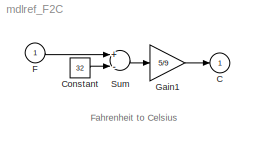
MODEL mdlref_F2C
KIND model
BLOCK [Outport] C
  BusOutputAsStruct = off
  IconDisplay = Port number
  InitialOutput = 0
BLOCK [Constant] Constant
  OutDataTypeMode = Inherit via back propagation
  Value = 32
BLOCK [Inport] F
  DataType = double
  IconDisplay = Port number
  LatchInput = off
  Port = 1
  PortDimensions = 1
  SampleTime = 0
  SamplingMode = Sample based
  SignalType = real
BLOCK [Gain] Gain1
  Gain = 5/9
BLOCK [Sum] Sum
  Inputs = +-
  Ports = [2, 1]
ANNOTATION (root): Fahrenheit to Celsius
LINE Constant:1 -> Sum:2
LINE F:1 -> Sum:1
LINE Gain1:1 -> C:1
LINE Sum:1 -> Gain1:1
